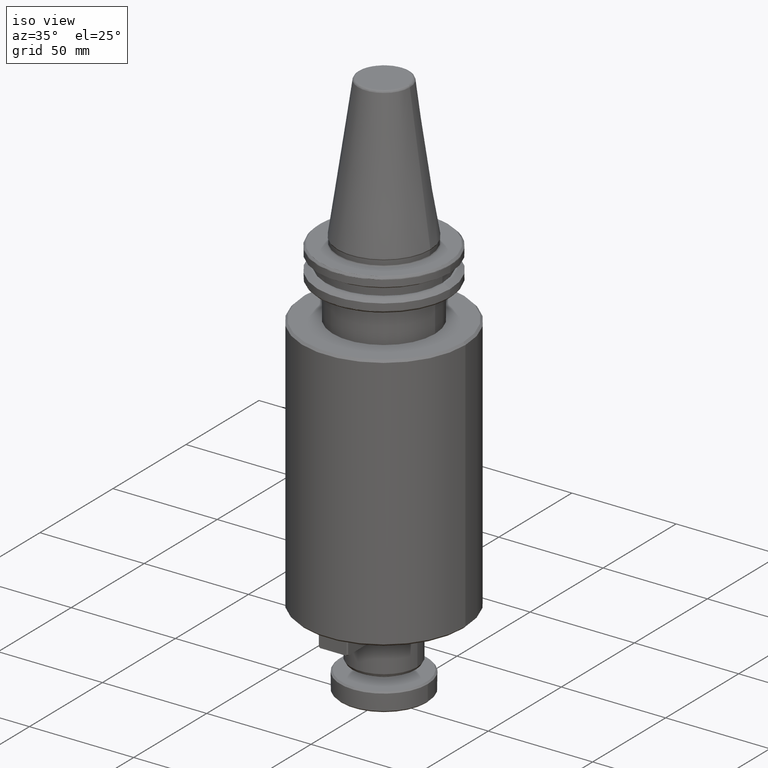
[diagram: clean part render]
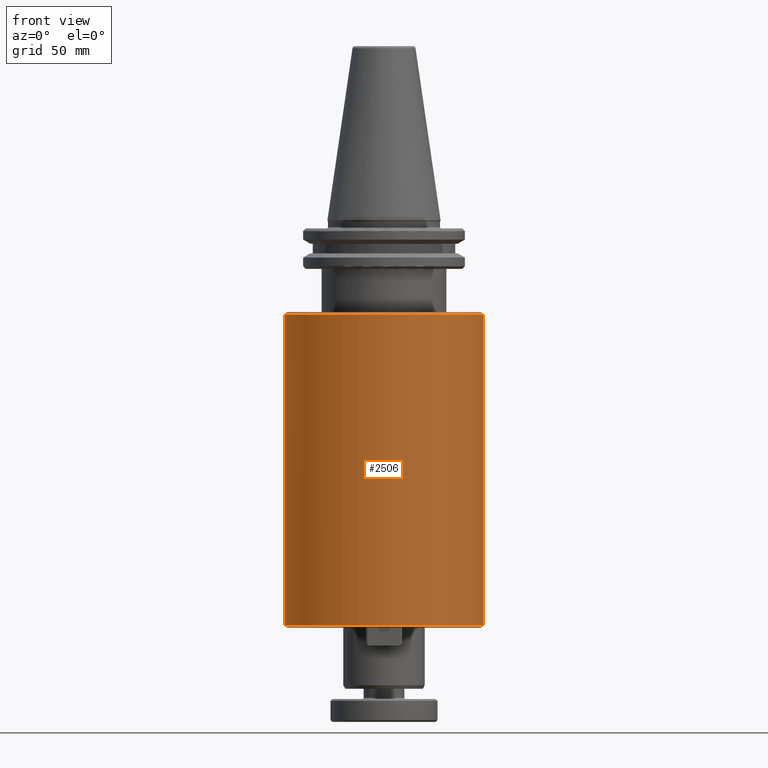
[diagram: tour spotlight — one face highlighted and labeled with its STEP entity id]
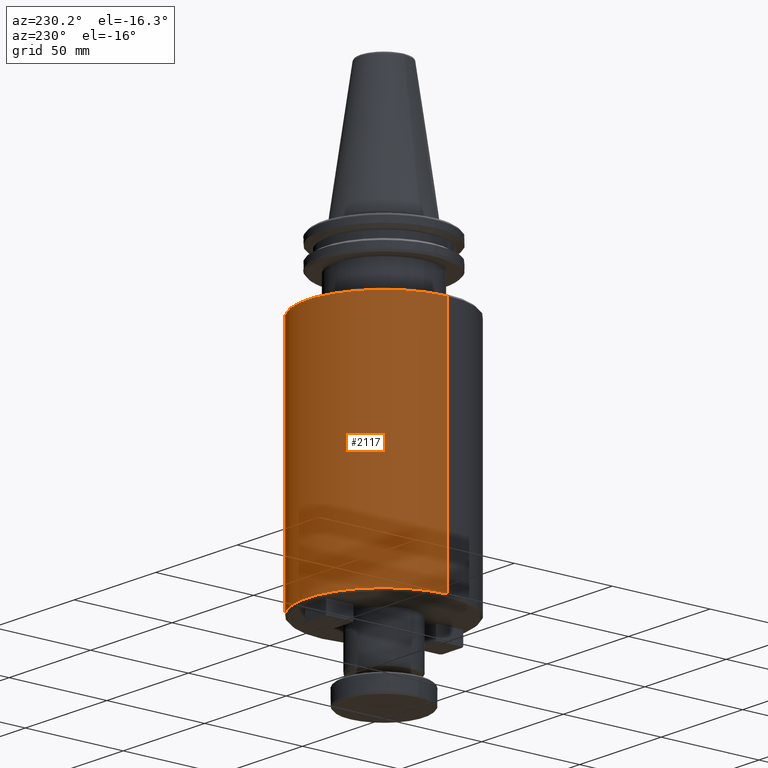
[diagram: tour spotlight — one face highlighted and labeled with its STEP entity id]
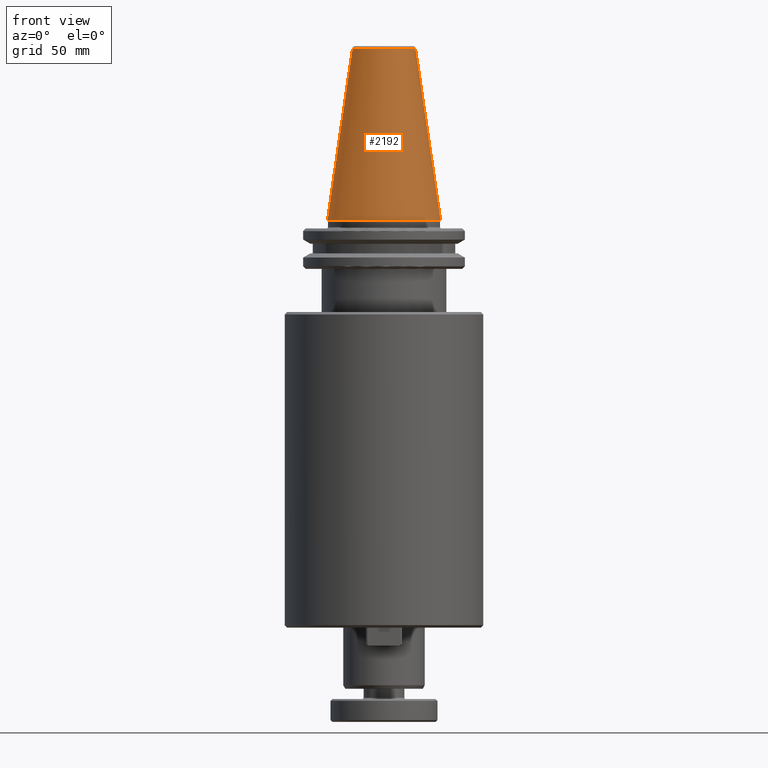
[diagram: tour spotlight — one face highlighted and labeled with its STEP entity id]
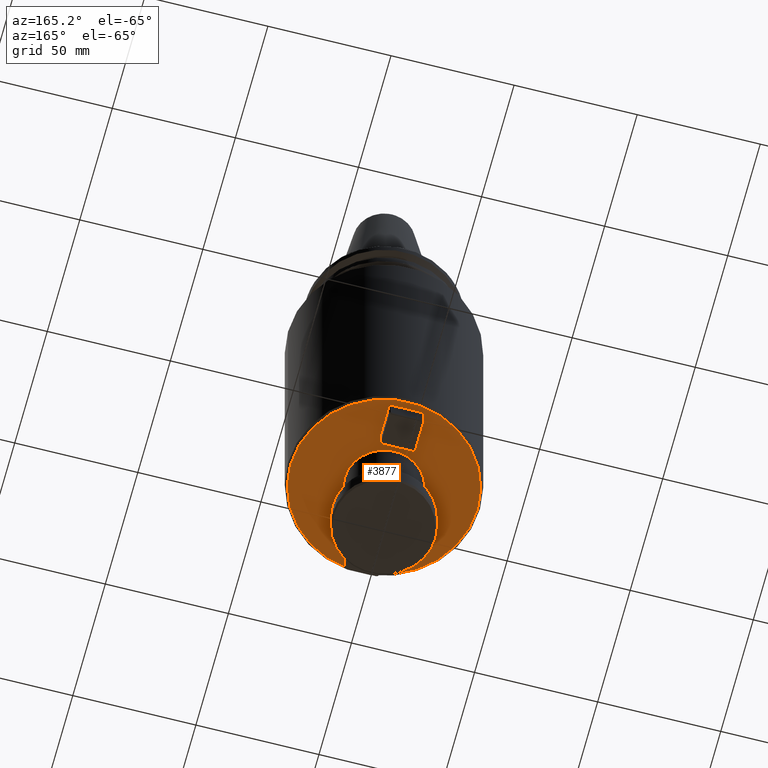
[diagram: tour spotlight — one face highlighted and labeled with its STEP entity id]
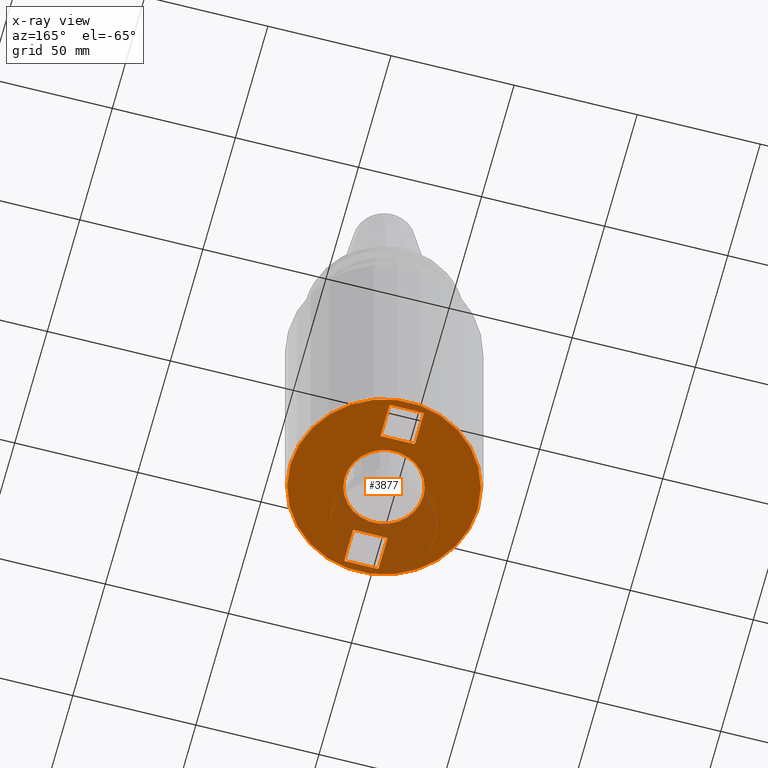
[diagram: x-ray of the same camera — body ghosted, this tour face saturated]
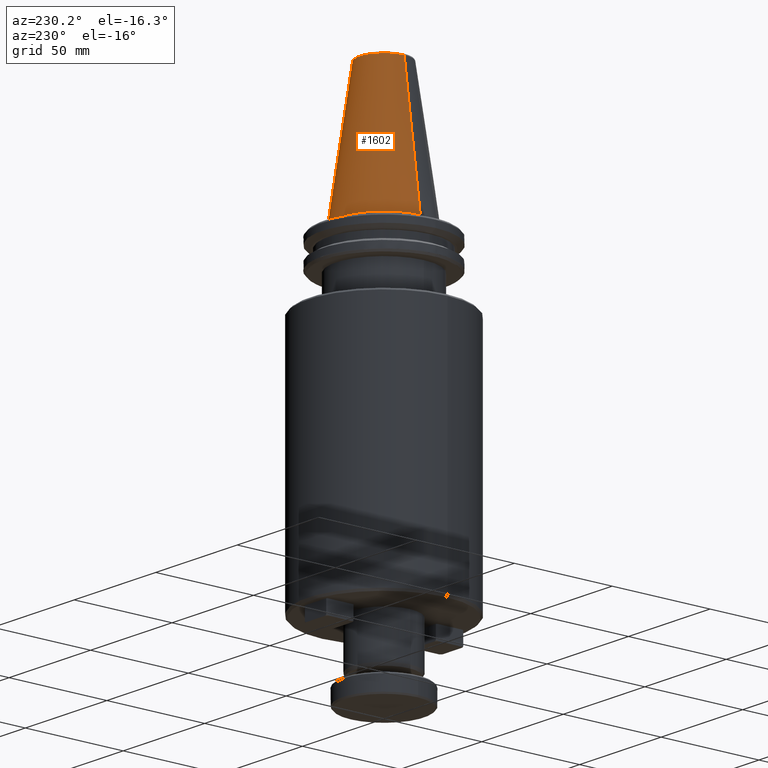
[diagram: tour spotlight — one face highlighted and labeled with its STEP entity id]
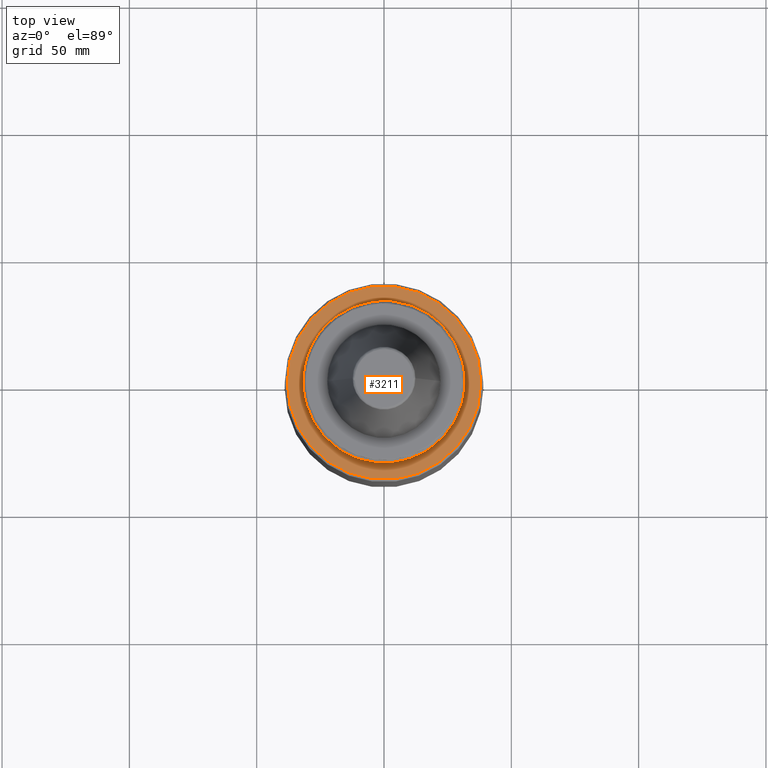
[diagram: tour spotlight — one face highlighted and labeled with its STEP entity id]
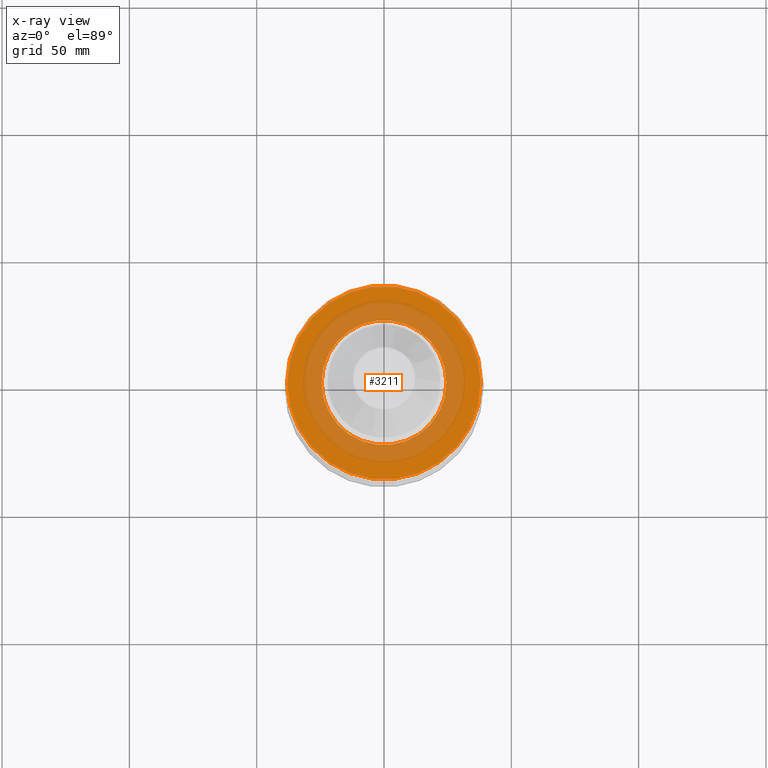
[diagram: x-ray of the same camera — body ghosted, this tour face saturated]
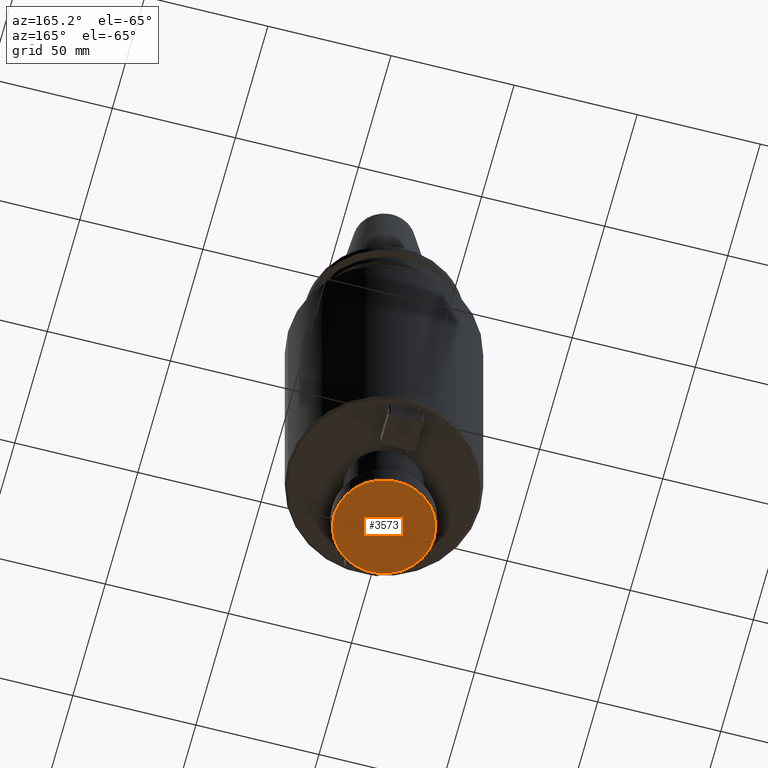
[diagram: tour spotlight — one face highlighted and labeled with its STEP entity id]
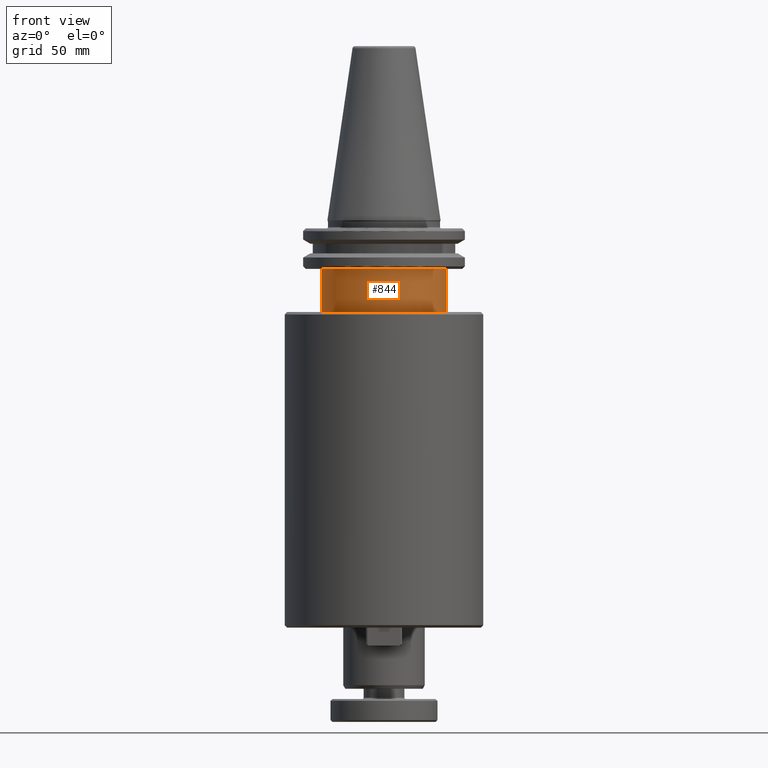
[diagram: tour spotlight — one face highlighted and labeled with its STEP entity id]
A machine part: a face-by-face anatomy tour. The part has 110 B-rep faces; the first image is the clean iso view, then the 8 largest visible faces are spotlighted one at a time (largest first), each with its STEP entity span.

Face 1 — front view, entity #2506. In plain terms, the highlighted cylindrical surface (partial cylindrical patch) has radius 39 mm, axis along (0, 0, 1).
Definition (entity closure, byte-faithful):
#184 = VERTEX_POINT ( 'NONE', #3766 ) ;
#227 = EDGE_CURVE ( 'NONE', #1431, #1350, #3176, .T. ) ;
#729 = ORIENTED_EDGE ( 'NONE', *, *, #3209, .F. ) ;
#732 = EDGE_LOOP ( 'NONE', ( #729, #2181, #1008, #2086 ) ) ;
#787 = FACE_OUTER_BOUND ( 'NONE', #732, .T. ) ;
#795 = AXIS2_PLACEMENT_3D ( 'NONE', #3941, #1971, #3298 ) ;
#1008 = ORIENTED_EDGE ( 'NONE', *, *, #227, .T. ) ;
#1071 = CARTESIAN_POINT ( 'NONE',  ( -39.00000000000000000, 0.0000000000000000000, -37.00000000000000700 ) ) ;
#1150 = CARTESIAN_POINT ( 'NONE',  ( 38.99999999999999300, 0.0000000000000000000, -159.0000000000000000 ) ) ;
#1350 = VERTEX_POINT ( 'NONE', #1518 ) ;
#1403 = CARTESIAN_POINT ( 'NONE',  ( 38.99999999999999300, 0.0000000000000000000, 82.95681253582424100 ) ) ;
#1431 = VERTEX_POINT ( 'NONE', #1150 ) ;
#1432 = CIRCLE ( 'NONE', #795, 38.99999999999999300 ) ;
#1457 = VERTEX_POINT ( 'NONE', #1071 ) ;
#1518 = CARTESIAN_POINT ( 'NONE',  ( 39.00000000000000000, 4.776122516674677900E-015, -37.00000000000000700 ) ) ;
#1639 = VECTOR ( 'NONE', #3443, 1000.000000000000000 ) ;
#1836 = VECTOR ( 'NONE', #4104, 1000.000000000000000 ) ;
#1854 = DIRECTION ( 'NONE',  ( 1.000000000000000000, 0.0000000000000000000, 0.0000000000000000000 ) ) ;
#1971 = DIRECTION ( 'NONE',  ( -0.0000000000000000000, -0.0000000000000000000, -1.000000000000000000 ) ) ;
#1977 = DIRECTION ( 'NONE',  ( 1.000000000000000000, 0.0000000000000000000, 0.0000000000000000000 ) ) ;
#2041 = AXIS2_PLACEMENT_3D ( 'NONE', #3944, #2969, #1977 ) ;
#2086 = ORIENTED_EDGE ( 'NONE', *, *, #2292, .T. ) ;
#2181 = ORIENTED_EDGE ( 'NONE', *, *, #2823, .T. ) ;
#2292 = EDGE_CURVE ( 'NONE', #1350, #1457, #1432, .T. ) ;
#2506 = ADVANCED_FACE ( 'NONE', ( #787 ), #4082, .T. ) ;
#2626 = DIRECTION ( 'NONE',  ( 0.0000000000000000000, 0.0000000000000000000, 1.000000000000000000 ) ) ;
#2823 = EDGE_CURVE ( 'NONE', #184, #1431, #3282, .T. ) ;
#2908 = AXIS2_PLACEMENT_3D ( 'NONE', #3947, #2626, #1854 ) ;
#2927 = LINE ( 'NONE', #3447, #1836 ) ;
#2969 = DIRECTION ( 'NONE',  ( 0.0000000000000000000, 0.0000000000000000000, 1.000000000000000000 ) ) ;
#3176 = LINE ( 'NONE', #1403, #1639 ) ;
#3209 = EDGE_CURVE ( 'NONE', #184, #1457, #2927, .T. ) ;
#3282 = CIRCLE ( 'NONE', #2908, 38.99999999999999300 ) ;
#3298 = DIRECTION ( 'NONE',  ( 1.000000000000000000, 0.0000000000000000000, 0.0000000000000000000 ) ) ;
#3443 = DIRECTION ( 'NONE',  ( 0.0000000000000000000, 0.0000000000000000000, 1.000000000000000000 ) ) ;
#3447 = CARTESIAN_POINT ( 'NONE',  ( -38.99999999999999300, 4.776122516674677100E-015, 82.95681253582424100 ) ) ;
#3766 = CARTESIAN_POINT ( 'NONE',  ( -38.99999999999999300, 4.776122516674677100E-015, -159.0000000000000000 ) ) ;
#3941 = CARTESIAN_POINT ( 'NONE',  ( 0.0000000000000000000, 0.0000000000000000000, -37.00000000000000700 ) ) ;
#3944 = CARTESIAN_POINT ( 'NONE',  ( 0.0000000000000000000, 0.0000000000000000000, 82.95681253582424100 ) ) ;
#3947 = CARTESIAN_POINT ( 'NONE',  ( 0.0000000000000000000, 0.0000000000000000000, -159.0000000000000000 ) ) ;
#4082 = CYLINDRICAL_SURFACE ( 'NONE', #2041, 38.99999999999999300 ) ;
#4104 = DIRECTION ( 'NONE',  ( 0.0000000000000000000, 0.0000000000000000000, 1.000000000000000000 ) ) ;

Face 2 — auxiliary view, entity #2117. In plain terms, the highlighted cylindrical surface (partial cylindrical patch) has radius 39 mm, axis along (0, 0, 1).
Definition (entity closure, byte-faithful):
#54 = ORIENTED_EDGE ( 'NONE', *, *, #783, .T. ) ;
#184 = VERTEX_POINT ( 'NONE', #3766 ) ;
#208 = CIRCLE ( 'NONE', #2351, 38.99999999999999300 ) ;
#227 = EDGE_CURVE ( 'NONE', #1431, #1350, #3176, .T. ) ;
#406 = DIRECTION ( 'NONE',  ( 1.000000000000000000, 0.0000000000000000000, 0.0000000000000000000 ) ) ;
#783 = EDGE_CURVE ( 'NONE', #1431, #184, #1436, .T. ) ;
#995 = ORIENTED_EDGE ( 'NONE', *, *, #2384, .T. ) ;
#1054 = FACE_OUTER_BOUND ( 'NONE', #1208, .T. ) ;
#1071 = CARTESIAN_POINT ( 'NONE',  ( -39.00000000000000000, 0.0000000000000000000, -37.00000000000000700 ) ) ;
#1150 = CARTESIAN_POINT ( 'NONE',  ( 38.99999999999999300, 0.0000000000000000000, -159.0000000000000000 ) ) ;
#1208 = EDGE_LOOP ( 'NONE', ( #54, #2622, #995, #1781 ) ) ;
#1350 = VERTEX_POINT ( 'NONE', #1518 ) ;
#1403 = CARTESIAN_POINT ( 'NONE',  ( 38.99999999999999300, 0.0000000000000000000, 82.95681253582424100 ) ) ;
#1431 = VERTEX_POINT ( 'NONE', #1150 ) ;
#1436 = CIRCLE ( 'NONE', #3332, 38.99999999999999300 ) ;
#1450 = DIRECTION ( 'NONE',  ( 0.0000000000000000000, 0.0000000000000000000, 1.000000000000000000 ) ) ;
#1457 = VERTEX_POINT ( 'NONE', #1071 ) ;
#1518 = CARTESIAN_POINT ( 'NONE',  ( 39.00000000000000000, 4.776122516674677900E-015, -37.00000000000000700 ) ) ;
#1639 = VECTOR ( 'NONE', #3443, 1000.000000000000000 ) ;
#1781 = ORIENTED_EDGE ( 'NONE', *, *, #227, .F. ) ;
#1834 = CYLINDRICAL_SURFACE ( 'NONE', #1990, 38.99999999999999300 ) ;
#1836 = VECTOR ( 'NONE', #4104, 1000.000000000000000 ) ;
#1889 = DIRECTION ( 'NONE',  ( -0.0000000000000000000, -0.0000000000000000000, -1.000000000000000000 ) ) ;
#1990 = AXIS2_PLACEMENT_3D ( 'NONE', #3670, #1450, #406 ) ;
#2117 = ADVANCED_FACE ( 'NONE', ( #1054 ), #1834, .T. ) ;
#2351 = AXIS2_PLACEMENT_3D ( 'NONE', #4174, #1889, #3861 ) ;
#2384 = EDGE_CURVE ( 'NONE', #1457, #1350, #208, .T. ) ;
#2622 = ORIENTED_EDGE ( 'NONE', *, *, #3209, .T. ) ;
#2927 = LINE ( 'NONE', #3447, #1836 ) ;
#3176 = LINE ( 'NONE', #1403, #1639 ) ;
#3209 = EDGE_CURVE ( 'NONE', #184, #1457, #2927, .T. ) ;
#3332 = AXIS2_PLACEMENT_3D ( 'NONE', #4037, #3714, #4232 ) ;
#3443 = DIRECTION ( 'NONE',  ( 0.0000000000000000000, 0.0000000000000000000, 1.000000000000000000 ) ) ;
#3447 = CARTESIAN_POINT ( 'NONE',  ( -38.99999999999999300, 4.776122516674677100E-015, 82.95681253582424100 ) ) ;
#3670 = CARTESIAN_POINT ( 'NONE',  ( 0.0000000000000000000, 0.0000000000000000000, 82.95681253582424100 ) ) ;
#3714 = DIRECTION ( 'NONE',  ( 0.0000000000000000000, 0.0000000000000000000, 1.000000000000000000 ) ) ;
#3766 = CARTESIAN_POINT ( 'NONE',  ( -38.99999999999999300, 4.776122516674677100E-015, -159.0000000000000000 ) ) ;
#3861 = DIRECTION ( 'NONE',  ( 1.000000000000000000, 0.0000000000000000000, 0.0000000000000000000 ) ) ;
#4037 = CARTESIAN_POINT ( 'NONE',  ( 0.0000000000000000000, 0.0000000000000000000, -159.0000000000000000 ) ) ;
#4104 = DIRECTION ( 'NONE',  ( 0.0000000000000000000, 0.0000000000000000000, 1.000000000000000000 ) ) ;
#4174 = CARTESIAN_POINT ( 'NONE',  ( 0.0000000000000000000, 0.0000000000000000000, -37.00000000000000700 ) ) ;
#4232 = DIRECTION ( 'NONE',  ( 1.000000000000000000, 0.0000000000000000000, 0.0000000000000000000 ) ) ;

Face 3 — front view, entity #2192. In plain terms, the highlighted conical surface has half-angle 8.297 deg.
Definition (entity closure, byte-faithful):
#126 = AXIS2_PLACEMENT_3D ( 'NONE', #4054, #2997, #4111 ) ;
#698 = ORIENTED_EDGE ( 'NONE', *, *, #1901, .F. ) ;
#736 = DIRECTION ( 'NONE',  ( 0.1443082272673070500, 1.767266086135363700E-017, -0.9895327864921743500 ) ) ;
#825 = EDGE_CURVE ( 'NONE', #2839, #2673, #3608, .T. ) ;
#841 = ORIENTED_EDGE ( 'NONE', *, *, #825, .T. ) ;
#876 = DIRECTION ( 'NONE',  ( 0.0000000000000000000, 0.0000000000000000000, -1.000000000000000000 ) ) ;
#883 = CARTESIAN_POINT ( 'NONE',  ( 22.22500000000000100, 2.721777511104992800E-015, 0.0000000000000000000 ) ) ;
#1044 = EDGE_CURVE ( 'NONE', #3624, #3976, #2091, .T. ) ;
#1053 = ORIENTED_EDGE ( 'NONE', *, *, #1303, .T. ) ;
#1303 = EDGE_CURVE ( 'NONE', #2673, #3976, #1376, .T. ) ;
#1319 = ORIENTED_EDGE ( 'NONE', *, *, #1044, .F. ) ;
#1376 = LINE ( 'NONE', #1552, #3899 ) ;
#1549 = DIRECTION ( 'NONE',  ( -1.000000000000000000, 0.0000000000000000000, 0.0000000000000000000 ) ) ;
#1552 = CARTESIAN_POINT ( 'NONE',  ( -22.22500000000000100, 0.0000000000000000000, 0.0000000000000000000 ) ) ;
#1553 = DIRECTION ( 'NONE',  ( -0.1443082272673070500, 0.0000000000000000000, -0.9895327864921743500 ) ) ;
#1676 = LINE ( 'NONE', #2159, #4188 ) ;
#1734 = FACE_OUTER_BOUND ( 'NONE', #4139, .T. ) ;
#1901 = EDGE_CURVE ( 'NONE', #2839, #3624, #1676, .T. ) ;
#1987 = CARTESIAN_POINT ( 'NONE',  ( 12.37469537611110800, 2.118620309691397300E-015, 67.54430822726729400 ) ) ;
#2091 = CIRCLE ( 'NONE', #2401, 22.22500000000000500 ) ;
#2113 = DIRECTION ( 'NONE',  ( 1.000000000000000000, 0.0000000000000000000, 9.822541477422708000E-017 ) ) ;
#2116 = DIRECTION ( 'NONE',  ( -0.0000000000000000000, -0.0000000000000000000, -1.000000000000000000 ) ) ;
#2123 = CARTESIAN_POINT ( 'NONE',  ( 0.0000000000000000000, 0.0000000000000000000, 0.0000000000000000000 ) ) ;
#2159 = CARTESIAN_POINT ( 'NONE',  ( 22.22500000000000100, 2.721777511104992800E-015, 0.0000000000000000000 ) ) ;
#2192 = ADVANCED_FACE ( 'NONE', ( #1734 ), #2492, .T. ) ;
#2401 = AXIS2_PLACEMENT_3D ( 'NONE', #2123, #2116, #2113 ) ;
#2492 = CONICAL_SURFACE ( 'NONE', #2646, 22.22500000000000100, 0.1448138465474190500 ) ;
#2646 = AXIS2_PLACEMENT_3D ( 'NONE', #3166, #876, #1549 ) ;
#2673 = VERTEX_POINT ( 'NONE', #3058 ) ;
#2839 = VERTEX_POINT ( 'NONE', #1987 ) ;
#2997 = DIRECTION ( 'NONE',  ( 0.0000000000000000000, 0.0000000000000000000, -1.000000000000000000 ) ) ;
#3058 = CARTESIAN_POINT ( 'NONE',  ( -12.37469537611110800, 0.0000000000000000000, 67.54430822726729400 ) ) ;
#3166 = CARTESIAN_POINT ( 'NONE',  ( 0.0000000000000000000, 0.0000000000000000000, 0.0000000000000000000 ) ) ;
#3398 = CARTESIAN_POINT ( 'NONE',  ( -22.22500000000000100, 0.0000000000000000000, 0.0000000000000000000 ) ) ;
#3608 = CIRCLE ( 'NONE', #126, 12.37469537611110800 ) ;
#3624 = VERTEX_POINT ( 'NONE', #883 ) ;
#3899 = VECTOR ( 'NONE', #1553, 1000.000000000000000 ) ;
#3976 = VERTEX_POINT ( 'NONE', #3398 ) ;
#4054 = CARTESIAN_POINT ( 'NONE',  ( 0.0000000000000000000, 0.0000000000000000000, 67.54430822726729400 ) ) ;
#4111 = DIRECTION ( 'NONE',  ( -1.000000000000000000, 0.0000000000000000000, 0.0000000000000000000 ) ) ;
#4139 = EDGE_LOOP ( 'NONE', ( #698, #841, #1053, #1319 ) ) ;
#4188 = VECTOR ( 'NONE', #736, 1000.000000000000000 ) ;

Face 4 — auxiliary view, entity #3877. An x-ray twin of the same camera follows (body ghosted, this face saturated) — the face is partly hidden behind the body. In plain terms, the highlighted planar face has unit normal (0, 0, 1).
Definition (entity closure, byte-faithful):
#6 = VECTOR ( 'NONE', #2069, 1000.000000000000100 ) ;
#9 = DIRECTION ( 'NONE',  ( -1.000000000000000000, -0.0000000000000000000, 0.0000000000000000000 ) ) ;
#21 = CARTESIAN_POINT ( 'NONE',  ( 0.0000000000000000000, -35.00000000000000700, -160.0000000000000000 ) ) ;
#26 = ORIENTED_EDGE ( 'NONE', *, *, #3950, .F. ) ;
#51 = VECTOR ( 'NONE', #149, 1000.000000000000000 ) ;
#63 = PLANE ( 'NONE',  #1260 ) ;
#74 = CARTESIAN_POINT ( 'NONE',  ( -38.00000000000000000, 4.714890176717309500E-015, -160.0000000000000000 ) ) ;
#79 = DIRECTION ( 'NONE',  ( -0.7071067811865722200, 0.7071067811865229300, -0.0000000000000000000 ) ) ;
#81 = DIRECTION ( 'NONE',  ( 0.0000000000000000000, 0.0000000000000000000, 1.000000000000000000 ) ) ;
#87 = DIRECTION ( 'NONE',  ( 0.7071067811865722200, -0.7071067811865229300, -0.0000000000000000000 ) ) ;
#93 = CIRCLE ( 'NONE', #3708, 38.00000000000000000 ) ;
#94 = VERTEX_POINT ( 'NONE', #2231 ) ;
#137 = ORIENTED_EDGE ( 'NONE', *, *, #687, .F. ) ;
#149 = DIRECTION ( 'NONE',  ( 0.0000000000000000000, -1.000000000000000000, -0.0000000000000000000 ) ) ;
#161 = EDGE_LOOP ( 'NONE', ( #691, #2254, #2917, #632, #1302, #2632, #246, #137 ) ) ;
#178 = DIRECTION ( 'NONE',  ( 1.000000000000000000, 0.0000000000000000000, 0.0000000000000000000 ) ) ;
#182 = DIRECTION ( 'NONE',  ( -0.0000000000000000000, -0.0000000000000000000, -1.000000000000000000 ) ) ;
#185 = CARTESIAN_POINT ( 'NONE',  ( 0.0000000000000000000, 0.0000000000000000000, -160.0000000000000000 ) ) ;
#197 = DIRECTION ( 'NONE',  ( -0.7071067811865230400, -0.7071067811865721100, -0.0000000000000000000 ) ) ;
#200 = EDGE_LOOP ( 'NONE', ( #2670, #771 ) ) ;
#209 = VERTEX_POINT ( 'NONE', #2374 ) ;
#216 = CARTESIAN_POINT ( 'NONE',  ( 0.0000000000000000000, 38.00000000000000000, -160.0000000000000000 ) ) ;
#244 = EDGE_CURVE ( 'NONE', #4083, #673, #1367, .T. ) ;
#246 = ORIENTED_EDGE ( 'NONE', *, *, #2230, .T. ) ;
#247 = DIRECTION ( 'NONE',  ( 1.000000000000000000, 0.0000000000000000000, -0.0000000000000000000 ) ) ;
#260 = FACE_BOUND ( 'NONE', #161, .T. ) ;
#291 = CARTESIAN_POINT ( 'NONE',  ( -6.600000000000006800, 35.00000000000001400, -160.0000000000000000 ) ) ;
#297 = VERTEX_POINT ( 'NONE', #4246 ) ;
#306 = VECTOR ( 'NONE', #436, 1000.000000000000000 ) ;
#328 = EDGE_CURVE ( 'NONE', #4243, #4275, #534, .T. ) ;
#356 = VECTOR ( 'NONE', #87, 999.9999999999998900 ) ;
#391 = EDGE_CURVE ( 'NONE', #4275, #1524, #936, .T. ) ;
#414 = LINE ( 'NONE', #2021, #1382 ) ;
#430 = CARTESIAN_POINT ( 'NONE',  ( 0.0000000000000000000, 21.00000000000001400, -160.0000000000000000 ) ) ;
#434 = CARTESIAN_POINT ( 'NONE',  ( 6.599999999999981900, 35.00000000000001400, -160.0000000000000000 ) ) ;
#436 = DIRECTION ( 'NONE',  ( 0.7071067811865230400, 0.7071067811865721100, -0.0000000000000000000 ) ) ;
#479 = VECTOR ( 'NONE', #9, 1000.000000000000000 ) ;
#534 = LINE ( 'NONE', #1793, #356 ) ;
#574 = EDGE_CURVE ( 'NONE', #1826, #2017, #3548, .T. ) ;
#586 = CARTESIAN_POINT ( 'NONE',  ( 7.000000000000004400, 38.00000000000000000, -160.0000000000000000 ) ) ;
#593 = ORIENTED_EDGE ( 'NONE', *, *, #244, .F. ) ;
#632 = ORIENTED_EDGE ( 'NONE', *, *, #3933, .F. ) ;
#647 = CIRCLE ( 'NONE', #2846, 16.00000000000000000 ) ;
#664 = ORIENTED_EDGE ( 'NONE', *, *, #391, .F. ) ;
#673 = VERTEX_POINT ( 'NONE', #3521 ) ;
#687 = EDGE_CURVE ( 'NONE', #209, #2815, #414, .T. ) ;
#691 = ORIENTED_EDGE ( 'NONE', *, *, #3988, .F. ) ;
#694 = CARTESIAN_POINT ( 'NONE',  ( -7.000000000000004400, 38.00000000000000000, -160.0000000000000000 ) ) ;
#707 = CARTESIAN_POINT ( 'NONE',  ( 7.000000000000004400, -21.39999999999999900, -160.0000000000000000 ) ) ;
#725 = CARTESIAN_POINT ( 'NONE',  ( -16.00000000000000000, 1.959434878635765100E-015, -160.0000000000000000 ) ) ;
#771 = ORIENTED_EDGE ( 'NONE', *, *, #574, .F. ) ;
#791 = CARTESIAN_POINT ( 'NONE',  ( -6.999999999999992900, 34.60000000000000900, -160.0000000000000000 ) ) ;
#928 = CARTESIAN_POINT ( 'NONE',  ( -7.000000000000006200, -21.39999999999997400, -160.0000000000000000 ) ) ;
#936 = LINE ( 'NONE', #1988, #1325 ) ;
#948 = VECTOR ( 'NONE', #3283, 1000.000000000000000 ) ;
#957 = DIRECTION ( 'NONE',  ( 1.000000000000000000, 0.0000000000000000000, -0.0000000000000000000 ) ) ;
#965 = AXIS2_PLACEMENT_3D ( 'NONE', #185, #182, #178 ) ;
#974 = DIRECTION ( 'NONE',  ( -1.000000000000000000, -0.0000000000000000000, 0.0000000000000000000 ) ) ;
#977 = EDGE_CURVE ( 'NONE', #3681, #1515, #647, .T. ) ;
#1021 = CARTESIAN_POINT ( 'NONE',  ( 16.00000000000000000, 0.0000000000000000000, -160.0000000000000000 ) ) ;
#1050 = LINE ( 'NONE', #1247, #3592 ) ;
#1067 = CARTESIAN_POINT ( 'NONE',  ( 7.000000000000008000, 21.39999999999997400, -160.0000000000000000 ) ) ;
#1098 = VERTEX_POINT ( 'NONE', #2171 ) ;
#1161 = FACE_BOUND ( 'NONE', #3832, .T. ) ;
#1224 = ORIENTED_EDGE ( 'NONE', *, *, #3926, .T. ) ;
#1247 = CARTESIAN_POINT ( 'NONE',  ( 6.600000000000047600, 21.00000000000001400, -160.0000000000000000 ) ) ;
#1253 = AXIS2_PLACEMENT_3D ( 'NONE', #2042, #3323, #3034 ) ;
#1260 = AXIS2_PLACEMENT_3D ( 'NONE', #216, #81, #957 ) ;
#1302 = ORIENTED_EDGE ( 'NONE', *, *, #4099, .F. ) ;
#1325 = VECTOR ( 'NONE', #2885, 1000.000000000000000 ) ;
#1367 = LINE ( 'NONE', #2940, #6 ) ;
#1379 = DIRECTION ( 'NONE',  ( 0.7071067811865474600, -0.7071067811865474600, -0.0000000000000000000 ) ) ;
#1382 = VECTOR ( 'NONE', #3834, 1000.000000000000000 ) ;
#1465 = CARTESIAN_POINT ( 'NONE',  ( 7.000000000000018700, 34.60000000000001600, -160.0000000000000000 ) ) ;
#1515 = VERTEX_POINT ( 'NONE', #1021 ) ;
#1517 = DIRECTION ( 'NONE',  ( 1.000000000000000000, 0.0000000000000000000, 0.0000000000000000000 ) ) ;
#1524 = VERTEX_POINT ( 'NONE', #1067 ) ;
#1591 = ORIENTED_EDGE ( 'NONE', *, *, #4001, .F. ) ;
#1630 = VERTEX_POINT ( 'NONE', #791 ) ;
#1725 = VECTOR ( 'NONE', #974, 1000.000000000000000 ) ;
#1769 = VECTOR ( 'NONE', #247, 1000.000000000000000 ) ;
#1786 = EDGE_CURVE ( 'NONE', #1515, #3681, #2082, .T. ) ;
#1793 = CARTESIAN_POINT ( 'NONE',  ( 7.000000000000017800, 34.60000000000001600, -160.0000000000000000 ) ) ;
#1826 = VERTEX_POINT ( 'NONE', #74 ) ;
#1828 = LINE ( 'NONE', #586, #51 ) ;
#1857 = DIRECTION ( 'NONE',  ( 1.000000000000000000, 0.0000000000000000000, 0.0000000000000000000 ) ) ;
#1869 = DIRECTION ( 'NONE',  ( -0.0000000000000000000, -0.0000000000000000000, -1.000000000000000000 ) ) ;
#1871 = CARTESIAN_POINT ( 'NONE',  ( 0.0000000000000000000, 0.0000000000000000000, -160.0000000000000000 ) ) ;
#1939 = EDGE_CURVE ( 'NONE', #673, #1630, #4080, .T. ) ;
#1972 = ORIENTED_EDGE ( 'NONE', *, *, #1939, .F. ) ;
#1988 = CARTESIAN_POINT ( 'NONE',  ( 7.000000000000017800, 38.00000000000000000, -160.0000000000000000 ) ) ;
#1997 = DIRECTION ( 'NONE',  ( 0.0000000000000000000, -0.0000000000000000000, 1.000000000000000000 ) ) ;
#2017 = VERTEX_POINT ( 'NONE', #2505 ) ;
#2021 = CARTESIAN_POINT ( 'NONE',  ( -7.000000000000017800, 38.00000000000000000, -160.0000000000000000 ) ) ;
#2029 = FACE_OUTER_BOUND ( 'NONE', #200, .T. ) ;
#2042 = CARTESIAN_POINT ( 'NONE',  ( 0.0000000000000000000, 0.0000000000000000000, -160.0000000000000000 ) ) ;
#2069 = DIRECTION ( 'NONE',  ( -0.7071067811865474600, 0.7071067811865474600, -0.0000000000000000000 ) ) ;
#2082 = CIRCLE ( 'NONE', #965, 16.00000000000000000 ) ;
#2087 = LINE ( 'NONE', #291, #3739 ) ;
#2171 = CARTESIAN_POINT ( 'NONE',  ( 6.999999999999992000, -34.60000000000000900, -160.0000000000000000 ) ) ;
#2230 = EDGE_CURVE ( 'NONE', #3952, #2815, #3492, .T. ) ;
#2231 = CARTESIAN_POINT ( 'NONE',  ( -6.599999999999981900, -35.00000000000001400, -160.0000000000000000 ) ) ;
#2238 = VERTEX_POINT ( 'NONE', #3143 ) ;
#2254 = ORIENTED_EDGE ( 'NONE', *, *, #3859, .F. ) ;
#2291 = LINE ( 'NONE', #707, #3063 ) ;
#2303 = CARTESIAN_POINT ( 'NONE',  ( 6.600000000000021000, -21.00000000000001100, -160.0000000000000000 ) ) ;
#2314 = EDGE_CURVE ( 'NONE', #2741, #1630, #2087, .T. ) ;
#2374 = CARTESIAN_POINT ( 'NONE',  ( -7.000000000000017800, -34.60000000000001600, -160.0000000000000000 ) ) ;
#2383 = VERTEX_POINT ( 'NONE', #2562 ) ;
#2426 = CARTESIAN_POINT ( 'NONE',  ( -6.600000000000006800, 35.00000000000001400, -160.0000000000000000 ) ) ;
#2431 = CARTESIAN_POINT ( 'NONE',  ( -6.600000000000047600, -21.00000000000001100, -160.0000000000000000 ) ) ;
#2484 = VERTEX_POINT ( 'NONE', #2303 ) ;
#2486 = VECTOR ( 'NONE', #79, 999.9999999999998900 ) ;
#2505 = CARTESIAN_POINT ( 'NONE',  ( 38.00000000000000000, 0.0000000000000000000, -160.0000000000000000 ) ) ;
#2562 = CARTESIAN_POINT ( 'NONE',  ( 6.600000000000006800, -35.00000000000001400, -160.0000000000000000 ) ) ;
#2580 = CARTESIAN_POINT ( 'NONE',  ( -6.600000000000047600, -21.00000000000001400, -160.0000000000000000 ) ) ;
#2593 = LINE ( 'NONE', #430, #1725 ) ;
#2632 = ORIENTED_EDGE ( 'NONE', *, *, #3151, .F. ) ;
#2670 = ORIENTED_EDGE ( 'NONE', *, *, #3140, .F. ) ;
#2741 = VERTEX_POINT ( 'NONE', #2426 ) ;
#2815 = VERTEX_POINT ( 'NONE', #928 ) ;
#2833 = CARTESIAN_POINT ( 'NONE',  ( 0.0000000000000000000, 35.00000000000001400, -160.0000000000000000 ) ) ;
#2846 = AXIS2_PLACEMENT_3D ( 'NONE', #1871, #1869, #1857 ) ;
#2881 = DIRECTION ( 'NONE',  ( 0.7071067811865474600, 0.7071067811865474600, -0.0000000000000000000 ) ) ;
#2885 = DIRECTION ( 'NONE',  ( 0.0000000000000000000, -1.000000000000000000, -0.0000000000000000000 ) ) ;
#2917 = ORIENTED_EDGE ( 'NONE', *, *, #2984, .T. ) ;
#2918 = LINE ( 'NONE', #21, #479 ) ;
#2940 = CARTESIAN_POINT ( 'NONE',  ( -7.000000000000004400, 21.39999999999999900, -160.0000000000000000 ) ) ;
#2984 = EDGE_CURVE ( 'NONE', #2383, #1098, #3840, .T. ) ;
#3015 = CARTESIAN_POINT ( 'NONE',  ( -6.600000000000021000, 21.00000000000001400, -160.0000000000000000 ) ) ;
#3034 = DIRECTION ( 'NONE',  ( 1.000000000000000000, 0.0000000000000000000, 0.0000000000000000000 ) ) ;
#3063 = VECTOR ( 'NONE', #1379, 1000.000000000000100 ) ;
#3140 = EDGE_CURVE ( 'NONE', #2017, #1826, #93, .T. ) ;
#3143 = CARTESIAN_POINT ( 'NONE',  ( 7.000000000000004400, -21.39999999999999500, -160.0000000000000000 ) ) ;
#3145 = DIRECTION ( 'NONE',  ( -0.0000000000000000000, 1.000000000000000000, 0.0000000000000000000 ) ) ;
#3151 = EDGE_CURVE ( 'NONE', #3952, #2484, #3327, .T. ) ;
#3283 = DIRECTION ( 'NONE',  ( 1.000000000000000000, 0.0000000000000000000, -0.0000000000000000000 ) ) ;
#3288 = VECTOR ( 'NONE', #3720, 1000.000000000000100 ) ;
#3323 = DIRECTION ( 'NONE',  ( 0.0000000000000000000, -0.0000000000000000000, 1.000000000000000000 ) ) ;
#3327 = LINE ( 'NONE', #3467, #1769 ) ;
#3341 = ORIENTED_EDGE ( 'NONE', *, *, #977, .F. ) ;
#3380 = LINE ( 'NONE', #3886, #2486 ) ;
#3467 = CARTESIAN_POINT ( 'NONE',  ( 0.0000000000000000000, -21.00000000000001100, -160.0000000000000000 ) ) ;
#3486 = LINE ( 'NONE', #2833, #948 ) ;
#3492 = LINE ( 'NONE', #2580, #3288 ) ;
#3521 = CARTESIAN_POINT ( 'NONE',  ( -7.000000000000004400, 21.39999999999999900, -160.0000000000000000 ) ) ;
#3524 = ORIENTED_EDGE ( 'NONE', *, *, #328, .F. ) ;
#3548 = CIRCLE ( 'NONE', #1253, 38.00000000000000000 ) ;
#3571 = EDGE_LOOP ( 'NONE', ( #3524, #1591, #4133, #1972, #593, #26, #1224, #664 ) ) ;
#3592 = VECTOR ( 'NONE', #2881, 1000.000000000000100 ) ;
#3681 = VERTEX_POINT ( 'NONE', #725 ) ;
#3708 = AXIS2_PLACEMENT_3D ( 'NONE', #3822, #1997, #1517 ) ;
#3720 = DIRECTION ( 'NONE',  ( -0.7071067811865474600, -0.7071067811865474600, -0.0000000000000000000 ) ) ;
#3739 = VECTOR ( 'NONE', #197, 1000.000000000000000 ) ;
#3795 = FACE_BOUND ( 'NONE', #3571, .T. ) ;
#3822 = CARTESIAN_POINT ( 'NONE',  ( 0.0000000000000000000, 0.0000000000000000000, -160.0000000000000000 ) ) ;
#3832 = EDGE_LOOP ( 'NONE', ( #4185, #3341 ) ) ;
#3834 = DIRECTION ( 'NONE',  ( -0.0000000000000000000, 1.000000000000000000, 0.0000000000000000000 ) ) ;
#3840 = LINE ( 'NONE', #4251, #306 ) ;
#3859 = EDGE_CURVE ( 'NONE', #2383, #94, #2918, .T. ) ;
#3877 = ADVANCED_FACE ( 'NONE', ( #1161, #2029, #3795, #260 ), #63, .F. ) ;
#3886 = CARTESIAN_POINT ( 'NONE',  ( -7.000000000000017800, -34.60000000000001600, -160.0000000000000000 ) ) ;
#3926 = EDGE_CURVE ( 'NONE', #297, #1524, #1050, .T. ) ;
#3933 = EDGE_CURVE ( 'NONE', #2238, #1098, #1828, .T. ) ;
#3950 = EDGE_CURVE ( 'NONE', #297, #4083, #2593, .T. ) ;
#3952 = VERTEX_POINT ( 'NONE', #2431 ) ;
#3988 = EDGE_CURVE ( 'NONE', #94, #209, #3380, .T. ) ;
#4001 = EDGE_CURVE ( 'NONE', #2741, #4243, #3486, .T. ) ;
#4080 = LINE ( 'NONE', #694, #4287 ) ;
#4083 = VERTEX_POINT ( 'NONE', #3015 ) ;
#4099 = EDGE_CURVE ( 'NONE', #2484, #2238, #2291, .T. ) ;
#4133 = ORIENTED_EDGE ( 'NONE', *, *, #2314, .T. ) ;
#4185 = ORIENTED_EDGE ( 'NONE', *, *, #1786, .F. ) ;
#4243 = VERTEX_POINT ( 'NONE', #434 ) ;
#4246 = CARTESIAN_POINT ( 'NONE',  ( 6.600000000000047600, 21.00000000000001400, -160.0000000000000000 ) ) ;
#4251 = CARTESIAN_POINT ( 'NONE',  ( 6.600000000000006800, -35.00000000000001400, -160.0000000000000000 ) ) ;
#4275 = VERTEX_POINT ( 'NONE', #1465 ) ;
#4287 = VECTOR ( 'NONE', #3145, 1000.000000000000000 ) ;

Face 5 — auxiliary view, entity #1602. In plain terms, the highlighted conical surface has half-angle 8.297 deg.
Definition (entity closure, byte-faithful):
#236 = ORIENTED_EDGE ( 'NONE', *, *, #1303, .F. ) ;
#585 = CARTESIAN_POINT ( 'NONE',  ( 0.0000000000000000000, 0.0000000000000000000, 0.0000000000000000000 ) ) ;
#638 = CARTESIAN_POINT ( 'NONE',  ( 0.0000000000000000000, 0.0000000000000000000, 67.54430822726729400 ) ) ;
#736 = DIRECTION ( 'NONE',  ( 0.1443082272673070500, 1.767266086135363700E-017, -0.9895327864921743500 ) ) ;
#805 = DIRECTION ( 'NONE',  ( -1.000000000000000000, 0.0000000000000000000, 0.0000000000000000000 ) ) ;
#808 = CARTESIAN_POINT ( 'NONE',  ( 0.0000000000000000000, 0.0000000000000000000, 0.0000000000000000000 ) ) ;
#810 = DIRECTION ( 'NONE',  ( 0.0000000000000000000, 0.0000000000000000000, -1.000000000000000000 ) ) ;
#883 = CARTESIAN_POINT ( 'NONE',  ( 22.22500000000000100, 2.721777511104992800E-015, 0.0000000000000000000 ) ) ;
#969 = DIRECTION ( 'NONE',  ( -1.000000000000000000, 0.0000000000000000000, 0.0000000000000000000 ) ) ;
#1001 = CIRCLE ( 'NONE', #3904, 12.37469537611110800 ) ;
#1137 = ORIENTED_EDGE ( 'NONE', *, *, #2215, .F. ) ;
#1303 = EDGE_CURVE ( 'NONE', #2673, #3976, #1376, .T. ) ;
#1376 = LINE ( 'NONE', #1552, #3899 ) ;
#1552 = CARTESIAN_POINT ( 'NONE',  ( -22.22500000000000100, 0.0000000000000000000, 0.0000000000000000000 ) ) ;
#1553 = DIRECTION ( 'NONE',  ( -0.1443082272673070500, 0.0000000000000000000, -0.9895327864921743500 ) ) ;
#1602 = ADVANCED_FACE ( 'NONE', ( #3382 ), #3932, .T. ) ;
#1676 = LINE ( 'NONE', #2159, #4188 ) ;
#1771 = EDGE_LOOP ( 'NONE', ( #4109, #2362, #1137, #236 ) ) ;
#1894 = DIRECTION ( 'NONE',  ( 1.000000000000000000, 0.0000000000000000000, 9.822541477422708000E-017 ) ) ;
#1901 = EDGE_CURVE ( 'NONE', #2839, #3624, #1676, .T. ) ;
#1987 = CARTESIAN_POINT ( 'NONE',  ( 12.37469537611110800, 2.118620309691397300E-015, 67.54430822726729400 ) ) ;
#2159 = CARTESIAN_POINT ( 'NONE',  ( 22.22500000000000100, 2.721777511104992800E-015, 0.0000000000000000000 ) ) ;
#2194 = DIRECTION ( 'NONE',  ( -0.0000000000000000000, -0.0000000000000000000, -1.000000000000000000 ) ) ;
#2215 = EDGE_CURVE ( 'NONE', #3976, #3624, #2602, .T. ) ;
#2362 = ORIENTED_EDGE ( 'NONE', *, *, #1901, .T. ) ;
#2467 = EDGE_CURVE ( 'NONE', #2673, #2839, #1001, .T. ) ;
#2602 = CIRCLE ( 'NONE', #3095, 22.22500000000000500 ) ;
#2673 = VERTEX_POINT ( 'NONE', #3058 ) ;
#2839 = VERTEX_POINT ( 'NONE', #1987 ) ;
#2954 = DIRECTION ( 'NONE',  ( 0.0000000000000000000, 0.0000000000000000000, -1.000000000000000000 ) ) ;
#3058 = CARTESIAN_POINT ( 'NONE',  ( -12.37469537611110800, 0.0000000000000000000, 67.54430822726729400 ) ) ;
#3095 = AXIS2_PLACEMENT_3D ( 'NONE', #585, #2194, #1894 ) ;
#3382 = FACE_OUTER_BOUND ( 'NONE', #1771, .T. ) ;
#3398 = CARTESIAN_POINT ( 'NONE',  ( -22.22500000000000100, 0.0000000000000000000, 0.0000000000000000000 ) ) ;
#3624 = VERTEX_POINT ( 'NONE', #883 ) ;
#3899 = VECTOR ( 'NONE', #1553, 1000.000000000000000 ) ;
#3904 = AXIS2_PLACEMENT_3D ( 'NONE', #638, #2954, #969 ) ;
#3919 = AXIS2_PLACEMENT_3D ( 'NONE', #808, #810, #805 ) ;
#3932 = CONICAL_SURFACE ( 'NONE', #3919, 22.22500000000000100, 0.1448138465474190500 ) ;
#3976 = VERTEX_POINT ( 'NONE', #3398 ) ;
#4109 = ORIENTED_EDGE ( 'NONE', *, *, #2467, .T. ) ;
#4188 = VECTOR ( 'NONE', #736, 1000.000000000000000 ) ;

Face 6 — top view, entity #3211. An x-ray twin of the same camera follows (body ghosted, this face saturated) — the face is partly hidden behind the body. In plain terms, the highlighted planar face has unit normal (0, 0, -1).
Definition (entity closure, byte-faithful):
#7 = DIRECTION ( 'NONE',  ( 0.0000000000000000000, 0.0000000000000000000, -1.000000000000000000 ) ) ;
#12 = CARTESIAN_POINT ( 'NONE',  ( 0.0000000000000000000, 0.0000000000000000000, -36.00000000000000700 ) ) ;
#32 = CARTESIAN_POINT ( 'NONE',  ( -24.50000000000000000, 3.000384657911015500E-015, -36.00000000000000700 ) ) ;
#58 = FACE_OUTER_BOUND ( 'NONE', #2011, .T. ) ;
#98 = CARTESIAN_POINT ( 'NONE',  ( -38.00000000000000000, 0.0000000000000000000, -36.00000000000000700 ) ) ;
#115 = AXIS2_PLACEMENT_3D ( 'NONE', #387, #460, #802 ) ;
#212 = CIRCLE ( 'NONE', #2924, 24.50000000000000000 ) ;
#387 = CARTESIAN_POINT ( 'NONE',  ( 0.0000000000000000000, 0.0000000000000000000, -36.00000000000000700 ) ) ;
#460 = DIRECTION ( 'NONE',  ( 0.0000000000000000000, 0.0000000000000000000, 1.000000000000000000 ) ) ;
#510 = ORIENTED_EDGE ( 'NONE', *, *, #1226, .F. ) ;
#786 = EDGE_LOOP ( 'NONE', ( #3629, #4125 ) ) ;
#802 = DIRECTION ( 'NONE',  ( 1.000000000000000000, 0.0000000000000000000, 0.0000000000000000000 ) ) ;
#1097 = EDGE_CURVE ( 'NONE', #3871, #1206, #212, .T. ) ;
#1206 = VERTEX_POINT ( 'NONE', #1757 ) ;
#1226 = EDGE_CURVE ( 'NONE', #2603, #2842, #3336, .T. ) ;
#1536 = CIRCLE ( 'NONE', #115, 24.50000000000000000 ) ;
#1594 = AXIS2_PLACEMENT_3D ( 'NONE', #1743, #1739, #1738 ) ;
#1709 = CARTESIAN_POINT ( 'NONE',  ( 38.00000000000000000, 4.714890176717310300E-015, -36.00000000000000700 ) ) ;
#1738 = DIRECTION ( 'NONE',  ( -1.000000000000000000, 0.0000000000000000000, 0.0000000000000000000 ) ) ;
#1739 = DIRECTION ( 'NONE',  ( 0.0000000000000000000, 0.0000000000000000000, -1.000000000000000000 ) ) ;
#1743 = CARTESIAN_POINT ( 'NONE',  ( 0.0000000000000000000, 0.0000000000000000000, -36.00000000000000700 ) ) ;
#1757 = CARTESIAN_POINT ( 'NONE',  ( 24.50000000000000000, 0.0000000000000000000, -36.00000000000000700 ) ) ;
#1856 = EDGE_CURVE ( 'NONE', #2842, #2603, #3737, .T. ) ;
#1858 = AXIS2_PLACEMENT_3D ( 'NONE', #4003, #3985, #3967 ) ;
#2011 = EDGE_LOOP ( 'NONE', ( #3616, #510 ) ) ;
#2186 = DIRECTION ( 'NONE',  ( 0.0000000000000000000, 0.0000000000000000000, 1.000000000000000000 ) ) ;
#2187 = CARTESIAN_POINT ( 'NONE',  ( 0.0000000000000000000, 0.0000000000000000000, -36.00000000000000700 ) ) ;
#2208 = DIRECTION ( 'NONE',  ( 1.000000000000000000, 0.0000000000000000000, 0.0000000000000000000 ) ) ;
#2245 = EDGE_CURVE ( 'NONE', #1206, #3871, #1536, .T. ) ;
#2603 = VERTEX_POINT ( 'NONE', #1709 ) ;
#2701 = FACE_BOUND ( 'NONE', #786, .T. ) ;
#2842 = VERTEX_POINT ( 'NONE', #98 ) ;
#2924 = AXIS2_PLACEMENT_3D ( 'NONE', #2187, #2186, #2208 ) ;
#2961 = AXIS2_PLACEMENT_3D ( 'NONE', #12, #7, #4121 ) ;
#3211 = ADVANCED_FACE ( 'NONE', ( #58, #2701 ), #4025, .F. ) ;
#3336 = CIRCLE ( 'NONE', #1594, 38.00000000000000000 ) ;
#3616 = ORIENTED_EDGE ( 'NONE', *, *, #1856, .F. ) ;
#3629 = ORIENTED_EDGE ( 'NONE', *, *, #2245, .F. ) ;
#3737 = CIRCLE ( 'NONE', #2961, 38.00000000000000000 ) ;
#3871 = VERTEX_POINT ( 'NONE', #32 ) ;
#3967 = DIRECTION ( 'NONE',  ( -1.000000000000000000, 0.0000000000000000000, -0.0000000000000000000 ) ) ;
#3985 = DIRECTION ( 'NONE',  ( 0.0000000000000000000, 0.0000000000000000000, -1.000000000000000000 ) ) ;
#4003 = CARTESIAN_POINT ( 'NONE',  ( 0.0000000000000000000, 24.50000000000000000, -36.00000000000001400 ) ) ;
#4025 = PLANE ( 'NONE',  #1858 ) ;
#4121 = DIRECTION ( 'NONE',  ( -1.000000000000000000, 0.0000000000000000000, 0.0000000000000000000 ) ) ;
#4125 = ORIENTED_EDGE ( 'NONE', *, *, #1097, .F. ) ;

Face 7 — auxiliary view, entity #3573. In plain terms, the highlighted planar face has unit normal (0, 0, -1).
Definition (entity closure, byte-faithful):
#27 = EDGE_CURVE ( 'NONE', #302, #2737, #2868, .T. ) ;
#152 = CIRCLE ( 'NONE', #916, 20.30000000000000100 ) ;
#302 = VERTEX_POINT ( 'NONE', #4212 ) ;
#916 = AXIS2_PLACEMENT_3D ( 'NONE', #3422, #1458, #3754 ) ;
#1154 = DIRECTION ( 'NONE',  ( -1.000000000000000000, 0.0000000000000000000, -0.0000000000000000000 ) ) ;
#1171 = DIRECTION ( 'NONE',  ( 0.0000000000000000000, 0.0000000000000000000, -1.000000000000000000 ) ) ;
#1218 = PLANE ( 'NONE',  #2223 ) ;
#1237 = CARTESIAN_POINT ( 'NONE',  ( 0.0000000000000000000, -20.30000000000000100, -197.0000000000000600 ) ) ;
#1458 = DIRECTION ( 'NONE',  ( 0.0000000000000000000, -0.0000000000000000000, 1.000000000000000000 ) ) ;
#1887 = FACE_OUTER_BOUND ( 'NONE', #2318, .T. ) ;
#1936 = ORIENTED_EDGE ( 'NONE', *, *, #27, .F. ) ;
#2056 = DIRECTION ( 'NONE',  ( 0.0000000000000000000, -0.0000000000000000000, 1.000000000000000000 ) ) ;
#2102 = CARTESIAN_POINT ( 'NONE',  ( -20.30000000000000100, 2.528895640239284900E-015, -197.0000000000000600 ) ) ;
#2223 = AXIS2_PLACEMENT_3D ( 'NONE', #1237, #1171, #1154 ) ;
#2318 = EDGE_LOOP ( 'NONE', ( #1936, #3553 ) ) ;
#2728 = EDGE_CURVE ( 'NONE', #2737, #302, #152, .T. ) ;
#2737 = VERTEX_POINT ( 'NONE', #2102 ) ;
#2868 = CIRCLE ( 'NONE', #4098, 20.30000000000000100 ) ;
#3343 = CARTESIAN_POINT ( 'NONE',  ( 0.0000000000000000000, 0.0000000000000000000, -197.0000000000000600 ) ) ;
#3422 = CARTESIAN_POINT ( 'NONE',  ( 0.0000000000000000000, 0.0000000000000000000, -197.0000000000000600 ) ) ;
#3553 = ORIENTED_EDGE ( 'NONE', *, *, #2728, .F. ) ;
#3573 = ADVANCED_FACE ( 'NONE', ( #1887 ), #1218, .T. ) ;
#3754 = DIRECTION ( 'NONE',  ( 1.000000000000000000, 0.0000000000000000000, 0.0000000000000000000 ) ) ;
#4098 = AXIS2_PLACEMENT_3D ( 'NONE', #3343, #2056, #4170 ) ;
#4170 = DIRECTION ( 'NONE',  ( 1.000000000000000000, 0.0000000000000000000, 0.0000000000000000000 ) ) ;
#4212 = CARTESIAN_POINT ( 'NONE',  ( 20.30000000000000100, 0.0000000000000000000, -197.0000000000000600 ) ) ;

Face 8 — front view, entity #844. In plain terms, the highlighted cylindrical surface (partial cylindrical patch) has radius 24.5 mm, axis along (0, 0, 1).
Definition (entity closure, byte-faithful):
#32 = CARTESIAN_POINT ( 'NONE',  ( -24.50000000000000000, 3.000384657911015500E-015, -36.00000000000000700 ) ) ;
#212 = CIRCLE ( 'NONE', #2924, 24.50000000000000000 ) ;
#243 = EDGE_CURVE ( 'NONE', #3871, #531, #1683, .T. ) ;
#517 = DIRECTION ( 'NONE',  ( 0.0000000000000000000, 0.0000000000000000000, 1.000000000000000000 ) ) ;
#522 = EDGE_CURVE ( 'NONE', #1960, #531, #3596, .T. ) ;
#526 = CARTESIAN_POINT ( 'NONE',  ( 24.50000000000000000, 0.0000000000000000000, 82.95681253582424100 ) ) ;
#531 = VERTEX_POINT ( 'NONE', #2409 ) ;
#678 = DIRECTION ( 'NONE',  ( 0.0000000000000000000, 0.0000000000000000000, 1.000000000000000000 ) ) ;
#746 = ORIENTED_EDGE ( 'NONE', *, *, #3774, .T. ) ;
#844 = ADVANCED_FACE ( 'NONE', ( #1839 ), #3501, .T. ) ;
#1097 = EDGE_CURVE ( 'NONE', #3871, #1206, #212, .T. ) ;
#1206 = VERTEX_POINT ( 'NONE', #1757 ) ;
#1345 = ORIENTED_EDGE ( 'NONE', *, *, #1097, .T. ) ;
#1683 = LINE ( 'NONE', #2398, #2540 ) ;
#1757 = CARTESIAN_POINT ( 'NONE',  ( 24.50000000000000000, 0.0000000000000000000, -36.00000000000000700 ) ) ;
#1839 = FACE_OUTER_BOUND ( 'NONE', #3678, .T. ) ;
#1960 = VERTEX_POINT ( 'NONE', #4057 ) ;
#2186 = DIRECTION ( 'NONE',  ( 0.0000000000000000000, 0.0000000000000000000, 1.000000000000000000 ) ) ;
#2187 = CARTESIAN_POINT ( 'NONE',  ( 0.0000000000000000000, 0.0000000000000000000, -36.00000000000000700 ) ) ;
#2208 = DIRECTION ( 'NONE',  ( 1.000000000000000000, 0.0000000000000000000, 0.0000000000000000000 ) ) ;
#2398 = CARTESIAN_POINT ( 'NONE',  ( -24.50000000000000000, 3.000384657911015500E-015, 82.95681253582424100 ) ) ;
#2409 = CARTESIAN_POINT ( 'NONE',  ( -24.50000000000000000, 3.000384657911015500E-015, -19.10000000000000500 ) ) ;
#2422 = DIRECTION ( 'NONE',  ( 1.000000000000000000, 0.0000000000000000000, 0.0000000000000000000 ) ) ;
#2540 = VECTOR ( 'NONE', #678, 1000.000000000000000 ) ;
#2675 = DIRECTION ( 'NONE',  ( 0.0000000000000000000, 0.0000000000000000000, 1.000000000000000000 ) ) ;
#2924 = AXIS2_PLACEMENT_3D ( 'NONE', #2187, #2186, #2208 ) ;
#3097 = DIRECTION ( 'NONE',  ( 1.000000000000000000, 0.0000000000000000000, 0.0000000000000000000 ) ) ;
#3179 = ORIENTED_EDGE ( 'NONE', *, *, #243, .F. ) ;
#3232 = VECTOR ( 'NONE', #517, 1000.000000000000000 ) ;
#3472 = AXIS2_PLACEMENT_3D ( 'NONE', #3790, #2675, #2422 ) ;
#3498 = DIRECTION ( 'NONE',  ( -0.0000000000000000000, -0.0000000000000000000, -1.000000000000000000 ) ) ;
#3501 = CYLINDRICAL_SURFACE ( 'NONE', #3472, 24.50000000000000000 ) ;
#3522 = AXIS2_PLACEMENT_3D ( 'NONE', #3997, #3498, #3097 ) ;
#3596 = CIRCLE ( 'NONE', #3522, 24.50000000000000000 ) ;
#3674 = ORIENTED_EDGE ( 'NONE', *, *, #522, .T. ) ;
#3678 = EDGE_LOOP ( 'NONE', ( #3179, #1345, #746, #3674 ) ) ;
#3774 = EDGE_CURVE ( 'NONE', #1206, #1960, #4084, .T. ) ;
#3790 = CARTESIAN_POINT ( 'NONE',  ( 0.0000000000000000000, 0.0000000000000000000, 82.95681253582424100 ) ) ;
#3871 = VERTEX_POINT ( 'NONE', #32 ) ;
#3997 = CARTESIAN_POINT ( 'NONE',  ( 0.0000000000000000000, 0.0000000000000000000, -19.10000000000000500 ) ) ;
#4057 = CARTESIAN_POINT ( 'NONE',  ( 24.50000000000000000, 0.0000000000000000000, -19.10000000000000500 ) ) ;
#4084 = LINE ( 'NONE', #526, #3232 ) ;